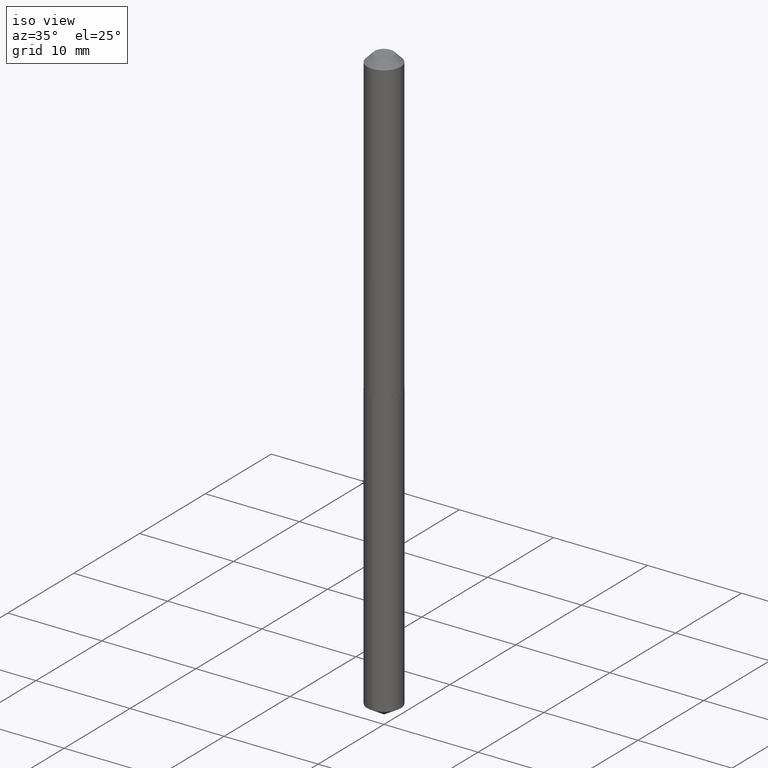
[diagram: clean part render]
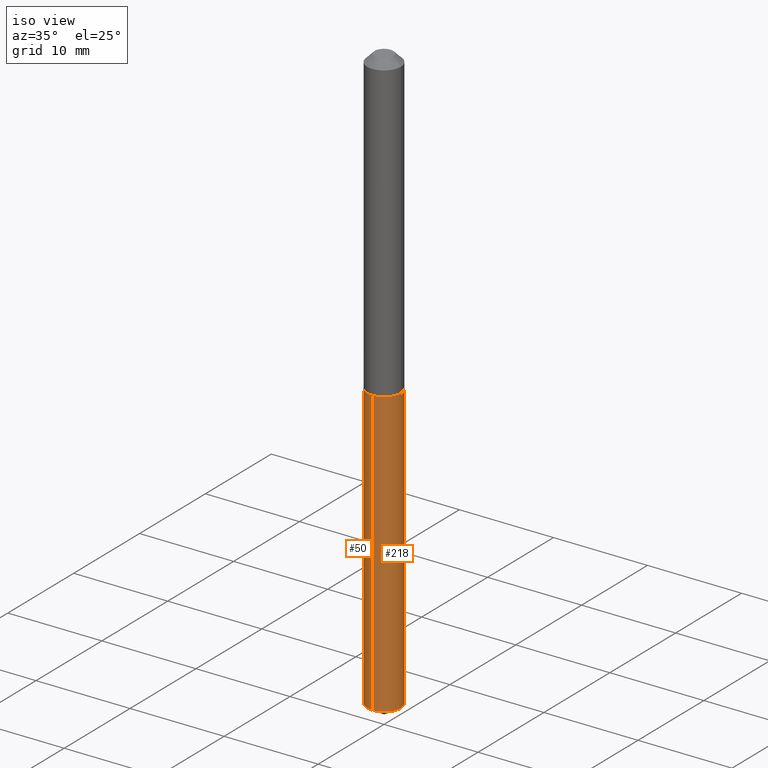
[diagram: same view with one multi-face feature highlighted, each face labeled with its STEP entity id]
A machine part, iso view. The highlighted faces form ONE feature: a constant-radius fillet chain: 2 tangent blend faces with common blend radius 1.7856 mm. The faces share edges in the B-rep.
Their STEP definitions:
[1] entity #218 (Cylinder):
#6 = EDGE_CURVE ( 'NONE', #202, #34, #174, .T. ) ;
#34 = VERTEX_POINT ( 'NONE', #205 ) ;
#41 = CARTESIAN_POINT ( 'NONE',  ( 6.010534991931295014E-29, -8.580991141991559447E-15, -2.457759498482362748 ) ) ;
#65 = VERTEX_POINT ( 'NONE', #131 ) ;
#68 = AXIS2_PLACEMENT_3D ( 'NONE', #41, #221, #338 ) ;
#78 = EDGE_LOOP ( 'NONE', ( #247, #320, #233, #349 ) ) ;
#97 = DIRECTION ( 'NONE',  ( -2.445603691901062614E-29, 3.491288174820721017E-15, 1.000000000000000000 ) ) ;
#103 = CARTESIAN_POINT ( 'NONE',  ( 3.094985321107909650E-29, -4.418818782439885749E-15, -1.265600000000000280 ) ) ;
#113 = AXIS2_PLACEMENT_3D ( 'NONE', #103, #280, #311 ) ;
#131 = CARTESIAN_POINT ( 'NONE',  ( -4.909022762413135901E-16, -0.07030000000000441451, -1.265600000000000058 ) ) ;
#133 = CARTESIAN_POINT ( 'NONE',  ( 3.094985321107909650E-29, -4.418818782439885749E-15, -1.265600000000000280 ) ) ;
#140 = LINE ( 'NONE', #377, #278 ) ;
#157 = DIRECTION ( 'NONE',  ( -2.445603691901062614E-29, 3.491288174820721411E-15, 1.000000000000000000 ) ) ;
#164 = EDGE_CURVE ( 'NONE', #65, #34, #206, .T. ) ;
#167 = VECTOR ( 'NONE', #97, 39.37007874015748143 ) ;
#174 = LINE ( 'NONE', #251, #167 ) ;
#188 = FACE_OUTER_BOUND ( 'NONE', #78, .T. ) ;
#194 = CARTESIAN_POINT ( 'NONE',  ( -4.909022762412844023E-16, -0.07030000000000859173, -2.457759498482362748 ) ) ;
#202 = VERTEX_POINT ( 'NONE', #259 ) ;
#205 = CARTESIAN_POINT ( 'NONE',  ( 4.995115432394106897E-16, 0.07029999999999557436, -1.265600000000000502 ) ) ;
#206 = CIRCLE ( 'NONE', #113, 0.07030000000000000138 ) ;
#218 = ADVANCED_FACE ( 'NONE', ( #188 ), #371, .T. ) ;
#221 = DIRECTION ( 'NONE',  ( -2.445603691901062614E-29, 3.491288174820721411E-15, 1.000000000000000000 ) ) ;
#225 = DIRECTION ( 'NONE',  ( -6.982962677686265133E-15, -1.000000000000000000, 3.885985766236505386E-15 ) ) ;
#226 = CIRCLE ( 'NONE', #68, 0.07030000000000000138 ) ;
#233 = ORIENTED_EDGE ( 'NONE', *, *, #164, .F. ) ;
#238 = EDGE_CURVE ( 'NONE', #249, #202, #226, .T. ) ;
#247 = ORIENTED_EDGE ( 'NONE', *, *, #238, .T. ) ;
#249 = VERTEX_POINT ( 'NONE', #194 ) ;
#251 = CARTESIAN_POINT ( 'NONE',  ( 4.995115432393813046E-16, 0.07029999999999557436, -1.265600000000000502 ) ) ;
#252 = AXIS2_PLACEMENT_3D ( 'NONE', #133, #157, #225 ) ;
#259 = CARTESIAN_POINT ( 'NONE',  ( 4.995115432394104925E-16, 0.07029999999999142490, -2.457759498482363192 ) ) ;
#260 = EDGE_CURVE ( 'NONE', #249, #65, #140, .T. ) ;
#264 = DIRECTION ( 'NONE',  ( -2.445603691901062614E-29, 3.491288174820721017E-15, 1.000000000000000000 ) ) ;
#278 = VECTOR ( 'NONE', #264, 39.37007874015748143 ) ;
#280 = DIRECTION ( 'NONE',  ( -2.445603691901062614E-29, 3.491288174820721411E-15, 1.000000000000000000 ) ) ;
#311 = DIRECTION ( 'NONE',  ( -6.982962677686265133E-15, -1.000000000000000000, 3.885985766236505386E-15 ) ) ;
#320 = ORIENTED_EDGE ( 'NONE', *, *, #6, .T. ) ;
#338 = DIRECTION ( 'NONE',  ( -6.982962677686265133E-15, -1.000000000000000000, 3.885985766236505386E-15 ) ) ;
#349 = ORIENTED_EDGE ( 'NONE', *, *, #260, .F. ) ;
#371 = CYLINDRICAL_SURFACE ( 'NONE', #252, 0.07030000000000000138 ) ;
#377 = CARTESIAN_POINT ( 'NONE',  ( -4.909022762413135901E-16, -0.07030000000000441451, -1.265600000000000058 ) ) ;
[2] entity #50 (Cylinder):
#6 = EDGE_CURVE ( 'NONE', #202, #34, #174, .T. ) ;
#11 = DIRECTION ( 'NONE',  ( -6.982962677686265133E-15, -1.000000000000000000, 3.885985766236505386E-15 ) ) ;
#17 = CARTESIAN_POINT ( 'NONE',  ( 6.010534991931295014E-29, -8.580991141991559447E-15, -2.457759498482362748 ) ) ;
#19 = AXIS2_PLACEMENT_3D ( 'NONE', #17, #291, #381 ) ;
#34 = VERTEX_POINT ( 'NONE', #205 ) ;
#50 = ADVANCED_FACE ( 'NONE', ( #362 ), #91, .T. ) ;
#58 = CARTESIAN_POINT ( 'NONE',  ( 3.094985321107909650E-29, -4.418818782439885749E-15, -1.265600000000000280 ) ) ;
#65 = VERTEX_POINT ( 'NONE', #131 ) ;
#67 = DIRECTION ( 'NONE',  ( -2.445603691901062614E-29, 3.491288174820721411E-15, 1.000000000000000000 ) ) ;
#91 = CYLINDRICAL_SURFACE ( 'NONE', #321, 0.07030000000000000138 ) ;
#97 = DIRECTION ( 'NONE',  ( -2.445603691901062614E-29, 3.491288174820721017E-15, 1.000000000000000000 ) ) ;
#131 = CARTESIAN_POINT ( 'NONE',  ( -4.909022762413135901E-16, -0.07030000000000441451, -1.265600000000000058 ) ) ;
#140 = LINE ( 'NONE', #377, #278 ) ;
#150 = ORIENTED_EDGE ( 'NONE', *, *, #262, .T. ) ;
#154 = ORIENTED_EDGE ( 'NONE', *, *, #180, .F. ) ;
#161 = CIRCLE ( 'NONE', #173, 0.07030000000000000138 ) ;
#167 = VECTOR ( 'NONE', #97, 39.37007874015748143 ) ;
#173 = AXIS2_PLACEMENT_3D ( 'NONE', #189, #67, #11 ) ;
#174 = LINE ( 'NONE', #251, #167 ) ;
#176 = DIRECTION ( 'NONE',  ( -2.445603691901062614E-29, 3.491288174820721411E-15, 1.000000000000000000 ) ) ;
#179 = EDGE_LOOP ( 'NONE', ( #239, #150, #335, #154 ) ) ;
#180 = EDGE_CURVE ( 'NONE', #34, #65, #161, .T. ) ;
#186 = CIRCLE ( 'NONE', #19, 0.07030000000000000138 ) ;
#189 = CARTESIAN_POINT ( 'NONE',  ( 3.094985321107909650E-29, -4.418818782439885749E-15, -1.265600000000000280 ) ) ;
#194 = CARTESIAN_POINT ( 'NONE',  ( -4.909022762412844023E-16, -0.07030000000000859173, -2.457759498482362748 ) ) ;
#202 = VERTEX_POINT ( 'NONE', #259 ) ;
#205 = CARTESIAN_POINT ( 'NONE',  ( 4.995115432394106897E-16, 0.07029999999999557436, -1.265600000000000502 ) ) ;
#239 = ORIENTED_EDGE ( 'NONE', *, *, #6, .F. ) ;
#249 = VERTEX_POINT ( 'NONE', #194 ) ;
#251 = CARTESIAN_POINT ( 'NONE',  ( 4.995115432393813046E-16, 0.07029999999999557436, -1.265600000000000502 ) ) ;
#259 = CARTESIAN_POINT ( 'NONE',  ( 4.995115432394104925E-16, 0.07029999999999142490, -2.457759498482363192 ) ) ;
#260 = EDGE_CURVE ( 'NONE', #249, #65, #140, .T. ) ;
#262 = EDGE_CURVE ( 'NONE', #202, #249, #186, .T. ) ;
#264 = DIRECTION ( 'NONE',  ( -2.445603691901062614E-29, 3.491288174820721017E-15, 1.000000000000000000 ) ) ;
#278 = VECTOR ( 'NONE', #264, 39.37007874015748143 ) ;
#291 = DIRECTION ( 'NONE',  ( -2.445603691901062614E-29, 3.491288174820721411E-15, 1.000000000000000000 ) ) ;
#299 = DIRECTION ( 'NONE',  ( -6.982962677686265133E-15, -1.000000000000000000, 3.885985766236505386E-15 ) ) ;
#321 = AXIS2_PLACEMENT_3D ( 'NONE', #58, #176, #299 ) ;
#335 = ORIENTED_EDGE ( 'NONE', *, *, #260, .T. ) ;
#362 = FACE_OUTER_BOUND ( 'NONE', #179, .T. ) ;
#377 = CARTESIAN_POINT ( 'NONE',  ( -4.909022762413135901E-16, -0.07030000000000441451, -1.265600000000000058 ) ) ;
#381 = DIRECTION ( 'NONE',  ( -6.982962677686265133E-15, -1.000000000000000000, 3.885985766236505386E-15 ) ) ;